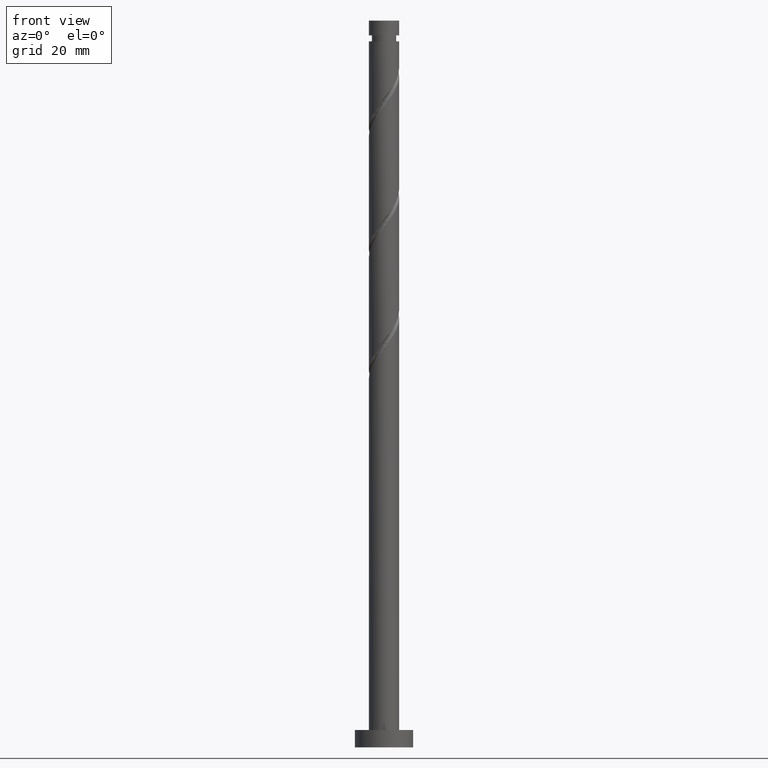
[diagram: clean part render]
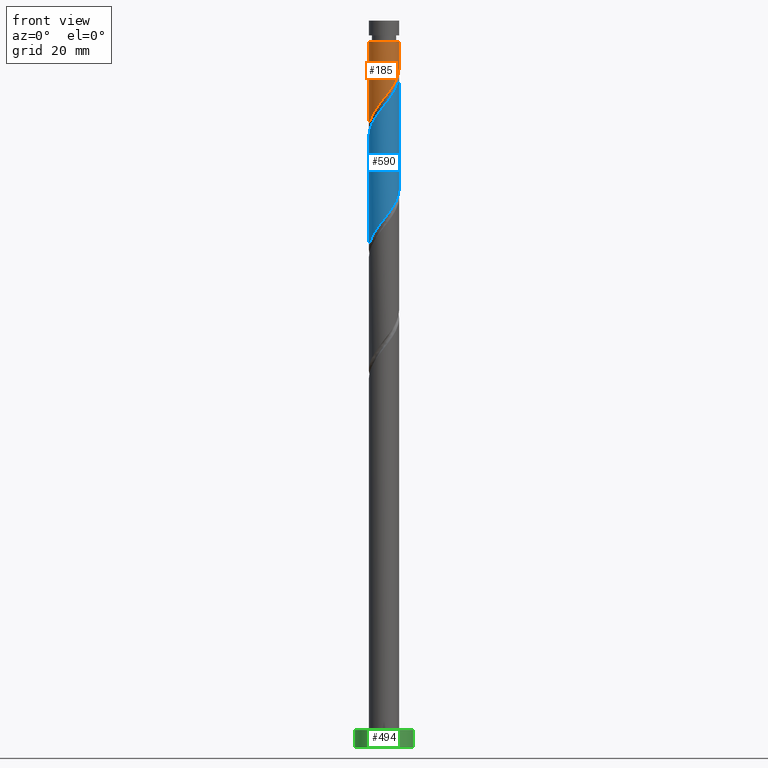
[diagram: same view with three faces highlighted in distinct colors, each labeled with its STEP entity id]
A machine part, front view with three faces highlighted in distinct colors.
Their STEP definitions:

[orange] entity #185 — the highlighted cylindrical surface (edge-blend (fillet) strip) has radius 2.6 mm, axis along (-0, -0, -1).
#3 = CARTESIAN_POINT ( 'NONE',  ( 2.263408629347179790, -1.279445730227240841, 115.1714861246484958 ) ) ;
#10 = CARTESIAN_POINT ( 'NONE',  ( 2.060764333439521589, -1.637934439212119342, 114.6506527913151245 ) ) ;
#40 = VERTEX_POINT ( 'NONE', #196 ) ;
#123 = CARTESIAN_POINT ( 'NONE',  ( -2.600000000000000089, 0.000000000000000000, 125.0000000000000000 ) ) ;
#131 = AXIS2_PLACEMENT_3D ( 'NONE', #1476, #1216, #1491 ) ;
#132 = VERTEX_POINT ( 'NONE', #203 ) ;
#136 = CARTESIAN_POINT ( 'NONE',  ( -2.599999999999999201, -1.544289586670198367E-15, 106.4612885661187391 ) ) ;
#185 = ADVANCED_FACE ( 'NONE', ( #961 ), #1313, .T. ) ;
#196 = CARTESIAN_POINT ( 'NONE',  ( -2.599999999999999645, -1.544289586670198367E-15, 106.4612885661187391 ) ) ;
#203 = CARTESIAN_POINT ( 'NONE',  ( -2.599999999999997424, 0.000000000000000000, 121.4214861246484674 ) ) ;
#215 = DIRECTION ( 'NONE',  ( -0.000000000000000000, -0.000000000000000000, -1.000000000000000000 ) ) ;
#251 = CARTESIAN_POINT ( 'NONE',  ( 2.600000000000000089, -0.2613098319673931025, 116.5436506573775830 ) ) ;
#269 = CARTESIAN_POINT ( 'NONE',  ( -1.637934439212119120, -2.060764333439521589, 109.4423194579817675 ) ) ;
#278 = CIRCLE ( 'NONE', #131, 2.599999999999997424 ) ;
#369 = CARTESIAN_POINT ( 'NONE',  ( -0.1138299133485246722, -2.629947074745159430, 111.5256527913151245 ) ) ;
#376 = CARTESIAN_POINT ( 'NONE',  ( -1.279445730227240396, -2.263408629347179790, 109.9631527913151814 ) ) ;
#399 = EDGE_CURVE ( 'NONE', #132, #40, #1480, .T. ) ;
#418 = EDGE_CURVE ( 'NONE', #623, #40, #466, .T. ) ;
#466 =( BOUNDED_CURVE ( )  B_SPLINE_CURVE ( 2, ( #504, #251, #968, #1099, #3, #10, #1220, #1459, #1349, #743, #492, #369, #615, #1467, #376, #269, #846, #750, #983, #1355, #736, #992, #136 ),
 .UNSPECIFIED., .F., .T. ) 
 B_SPLINE_CURVE_WITH_KNOTS ( ( 3, 2, 2, 2, 2, 2, 2, 2, 2, 2, 2, 3 ),
 ( 0.3045322023138550827, 0.3125000000000000000, 0.3250000000000000111, 0.3375000000000000222, 0.3499999999999999778, 0.3624999999999999889, 0.3750000000000000000, 0.3875000000000000111, 0.4000000000000000222, 0.4124999999999999778, 0.4249999999999999889, 0.4295322023138549716 ),
 .UNSPECIFIED. ) 
 CURVE ( )  GEOMETRIC_REPRESENTATION_ITEM ( )  RATIONAL_B_SPLINE_CURVE ( ( 0.9039174447099348475, 0.9019565955404640345, 0.9090909090909123913, 0.8978984914501285663, 0.9090909090909123913, 0.8978984914501285663, 0.9090909090909123913, 0.8978984914501285663, 0.9090909090909123913, 0.8978984914501285663, 0.9090909090909123913, 0.8978984914501285663, 0.9090909090909123913, 0.8978984914501285663, 0.9090909090909123913, 0.8978984914501285663, 0.9090909090909123913, 0.8978984914501285663, 0.9090909090909123913, 0.8978984914501285663, 0.9090909090909123913, 0.9050328050005771452, 0.9039174447099349585 ) ) 
 REPRESENTATION_ITEM ( '' )  );
#487 = VERTEX_POINT ( 'NONE', #868 ) ;
#492 = CARTESIAN_POINT ( 'NONE',  ( 0.2953048731074912059, -2.583175377692920716, 112.0464861246484674 ) ) ;
#504 = CARTESIAN_POINT ( 'NONE',  ( 2.599999999999999645, 1.289406839355699590E-15, 116.8779552327854105 ) ) ;
#507 = ORIENTED_EDGE ( 'NONE', *, *, #399, .T. ) ;
#613 = AXIS2_PLACEMENT_3D ( 'NONE', #1177, #1419, #1452 ) ;
#615 = CARTESIAN_POINT ( 'NONE',  ( -0.5173934672954429992, -2.547999999999999154, 111.0048194579818102 ) ) ;
#623 = VERTEX_POINT ( 'NONE', #1151 ) ;
#736 = CARTESIAN_POINT ( 'NONE',  ( -2.583175377692920716, -0.2953048731074913169, 106.8381527913151245 ) ) ;
#743 = CARTESIAN_POINT ( 'NONE',  ( 0.7044396595635074032, -2.536403680640682445, 112.5673194579818102 ) ) ;
#750 = CARTESIAN_POINT ( 'NONE',  ( -2.194579422111507139, -1.453753770477751450, 108.4006527913151388 ) ) ;
#842 = CARTESIAN_POINT ( 'NONE',  ( 2.600000000000000089, 3.184081677783117698E-16, 125.0000000000000000 ) ) ;
#846 = CARTESIAN_POINT ( 'NONE',  ( -1.916256930661813573, -1.757259051958636409, 108.9214861246484674 ) ) ;
#847 = ORIENTED_EDGE ( 'NONE', *, *, #907, .F. ) ;
#868 = CARTESIAN_POINT ( 'NONE',  ( 2.599999999999997424, 3.184081677783115726E-16, 121.4214861246484674 ) ) ;
#907 = EDGE_CURVE ( 'NONE', #487, #623, #1324, .T. ) ;
#961 = FACE_OUTER_BOUND ( 'NONE', #1093, .T. ) ;
#968 = CARTESIAN_POINT ( 'NONE',  ( 2.547999999999999154, -0.5173934672954431102, 116.2131527913151530 ) ) ;
#983 = CARTESIAN_POINT ( 'NONE',  ( -2.365491551376095458, -1.079096715020629205, 107.8798194579818102 ) ) ;
#992 = CARTESIAN_POINT ( 'NONE',  ( -2.599999999999998312, -0.1481317173607312743, 106.6507996553260114 ) ) ;
#1092 = DIRECTION ( 'NONE',  ( -0.000000000000000000, -0.000000000000000000, -1.000000000000000000 ) ) ;
#1093 = EDGE_LOOP ( 'NONE', ( #847, #1315, #507, #1288 ) ) ;
#1099 = CARTESIAN_POINT ( 'NONE',  ( 2.466052925254839323, -0.9209570212423613400, 115.6923194579817959 ) ) ;
#1118 = VECTOR ( 'NONE', #215, 1000.000000000000000 ) ;
#1151 = CARTESIAN_POINT ( 'NONE',  ( 2.599999999999999645, 1.289406839355699590E-15, 116.8779552327854105 ) ) ;
#1174 = EDGE_CURVE ( 'NONE', #487, #132, #278, .T. ) ;
#1177 = CARTESIAN_POINT ( 'NONE',  ( 0.000000000000000000, 0.000000000000000000, 125.0000000000000000 ) ) ;
#1216 = DIRECTION ( 'NONE',  ( -0.000000000000000000, -0.000000000000000000, -1.000000000000000000 ) ) ;
#1220 = CARTESIAN_POINT ( 'NONE',  ( 1.757259051958636409, -1.916256930661813573, 114.1298194579817959 ) ) ;
#1225 = VECTOR ( 'NONE', #1092, 1000.000000000000000 ) ;
#1288 = ORIENTED_EDGE ( 'NONE', *, *, #418, .F. ) ;
#1313 = CYLINDRICAL_SURFACE ( 'NONE', #613, 2.600000000000000089 ) ;
#1315 = ORIENTED_EDGE ( 'NONE', *, *, #1174, .T. ) ;
#1324 = LINE ( 'NONE', #842, #1118 ) ;
#1349 = CARTESIAN_POINT ( 'NONE',  ( 1.079096715020629205, -2.365491551376095458, 113.0881527913151530 ) ) ;
#1355 = CARTESIAN_POINT ( 'NONE',  ( -2.536403680640682445, -0.7044396595635075142, 107.3589861246484816 ) ) ;
#1419 = DIRECTION ( 'NONE',  ( -0.000000000000000000, -0.000000000000000000, -1.000000000000000000 ) ) ;
#1452 = DIRECTION ( 'NONE',  ( -1.000000000000000000, 0.000000000000000000, 0.000000000000000000 ) ) ;
#1459 = CARTESIAN_POINT ( 'NONE',  ( 1.453753770477751450, -2.194579422111507583, 113.6089861246484674 ) ) ;
#1467 = CARTESIAN_POINT ( 'NONE',  ( -0.9209570212423611180, -2.466052925254839323, 110.4839861246484531 ) ) ;
#1476 = CARTESIAN_POINT ( 'NONE',  ( 0.000000000000000000, 0.000000000000000000, 121.4214861246484674 ) ) ;
#1480 = LINE ( 'NONE', #123, #1225 ) ;
#1491 = DIRECTION ( 'NONE',  ( -1.000000000000000000, 0.000000000000000000, 0.000000000000000000 ) ) ;

[blue] entity #590 — the highlighted cylindrical surface (edge-blend (fillet) strip) has radius 2.6 mm, axis along (-0, -0, -1).
#23 = CARTESIAN_POINT ( 'NONE',  ( 2.600000000000004086, 8.845930642091356675E-16, 115.5483503498448670 ) ) ;
#45 = CARTESIAN_POINT ( 'NONE',  ( 2.547999999999999154, -0.5173934672954431102, 95.37981945798179595 ) ) ;
#55 = CARTESIAN_POINT ( 'NONE',  ( -0.5173934672954429992, -2.547999999999999154, 90.17148612464848156 ) ) ;
#116 = CARTESIAN_POINT ( 'NONE',  ( -1.757259051958639740, -1.916256930661815572, 107.8798194579817817 ) ) ;
#139 = VERTEX_POINT ( 'NONE', #245 ) ;
#143 = CARTESIAN_POINT ( 'NONE',  ( 2.600000000000003197, -0.1481317173607285542, 115.3588392606375805 ) ) ;
#160 = VERTEX_POINT ( 'NONE', #1541 ) ;
#182 = CARTESIAN_POINT ( 'NONE',  ( -2.600000000000000089, 3.418427434570925027E-15, 85.62795523278539633 ) ) ;
#194 = CARTESIAN_POINT ( 'NONE',  ( -0.1138299133485246722, -2.629947074745159430, 90.69231945798178174 ) ) ;
#245 = CARTESIAN_POINT ( 'NONE',  ( 2.599999999999999201, 3.598344667969393893E-15, 96.04462189945208195 ) ) ;
#257 = DIRECTION ( 'NONE',  ( -0.000000000000000000, -0.000000000000000000, -1.000000000000000000 ) ) ;
#263 = CARTESIAN_POINT ( 'NONE',  ( 2.583175377692925156, -0.2953048731074931488, 115.1714861246484389 ) ) ;
#291 = DIRECTION ( 'NONE',  ( -0.000000000000000000, -0.000000000000000000, -1.000000000000000000 ) ) ;
#292 = CARTESIAN_POINT ( 'NONE',  ( 0.7044396595635074032, -2.536403680640682445, 91.73398612464848156 ) ) ;
#332 = EDGE_CURVE ( 'NONE', #666, #1307, #1097, .T. ) ;
#381 = EDGE_CURVE ( 'NONE', #1307, #139, #756, .T. ) ;
#406 = CARTESIAN_POINT ( 'NONE',  ( 2.600000000000000089, -0.2613098319673937131, 95.71031732404422598 ) ) ;
#423 = CARTESIAN_POINT ( 'NONE',  ( -2.365491551376095458, -1.079096715020629205, 87.04648612464846735 ) ) ;
#426 = CARTESIAN_POINT ( 'NONE',  ( 2.600000000000004086, 8.845930642091356675E-16, 115.5483503498448670 ) ) ;
#456 = CARTESIAN_POINT ( 'NONE',  ( -0.7044396595635092906, -2.536403680640686886, 109.4423194579817675 ) ) ;
#464 = CARTESIAN_POINT ( 'NONE',  ( -2.548000000000004039, -0.5173934672954429992, 105.7964861246484958 ) ) ;
#496 = LINE ( 'NONE', #1470, #1269 ) ;
#519 = EDGE_LOOP ( 'NONE', ( #631, #1461, #602, #1367 ) ) ;
#524 = CARTESIAN_POINT ( 'NONE',  ( 2.466052925254839323, -0.9209570212423613400, 94.85898612464843893 ) ) ;
#536 = CARTESIAN_POINT ( 'NONE',  ( -1.637934439212119120, -2.060764333439521589, 88.60898612464846735 ) ) ;
#538 = AXIS2_PLACEMENT_3D ( 'NONE', #908, #291, #1039 ) ;
#569 = CARTESIAN_POINT ( 'NONE',  ( -2.466052925254843320, -0.9209570212423621172, 106.3173194579817959 ) ) ;
#586 = CARTESIAN_POINT ( 'NONE',  ( 0.1138299133485235898, -2.629947074745163871, 110.4839861246484674 ) ) ;
#590 = ADVANCED_FACE ( 'NONE', ( #772 ), #1511, .T. ) ;
#602 = ORIENTED_EDGE ( 'NONE', *, *, #1192, .T. ) ;
#631 = ORIENTED_EDGE ( 'NONE', *, *, #381, .F. ) ;
#661 = CARTESIAN_POINT ( 'NONE',  ( 1.079096715020629205, -2.365491551376095458, 92.25481945798182437 ) ) ;
#663 = VECTOR ( 'NONE', #257, 1000.000000000000000 ) ;
#666 = VERTEX_POINT ( 'NONE', #1032 ) ;
#672 = CARTESIAN_POINT ( 'NONE',  ( -1.279445730227240396, -2.263408629347179790, 89.12981945798182437 ) ) ;
#707 = CARTESIAN_POINT ( 'NONE',  ( -2.060764333439525142, -1.637934439212121562, 107.3589861246484247 ) ) ;
#715 = CARTESIAN_POINT ( 'NONE',  ( 2.194579422111509803, -1.453753770477754337, 113.6089861246484389 ) ) ;
#747 = DIRECTION ( 'NONE',  ( -0.000000000000000000, -0.000000000000000000, -1.000000000000000000 ) ) ;
#756 = LINE ( 'NONE', #1333, #663 ) ;
#772 = FACE_OUTER_BOUND ( 'NONE', #519, .T. ) ;
#779 = CARTESIAN_POINT ( 'NONE',  ( -0.9209570212423611180, -2.466052925254839323, 89.65065279131512455 ) ) ;
#831 = CARTESIAN_POINT ( 'NONE',  ( 1.637934439212121118, -2.060764333439525142, 112.5673194579818102 ) ) ;
#882 = CARTESIAN_POINT ( 'NONE',  ( 2.263408629347179790, -1.279445730227240841, 94.33815279131512455 ) ) ;
#891 = CARTESIAN_POINT ( 'NONE',  ( 1.453753770477751450, -2.194579422111507583, 92.77565279131511033 ) ) ;
#908 = CARTESIAN_POINT ( 'NONE',  ( 0.000000000000000000, 0.000000000000000000, 125.0000000000000000 ) ) ;
#936 = CARTESIAN_POINT ( 'NONE',  ( -0.2953048731074928712, -2.583175377692925156, 109.9631527913151388 ) ) ;
#944 = CARTESIAN_POINT ( 'NONE',  ( -2.263408629347184675, -1.279445730227242173, 106.8381527913151388 ) ) ;
#1005 = CARTESIAN_POINT ( 'NONE',  ( 2.599999999999999201, 3.598344667969393893E-15, 96.04462189945208195 ) ) ;
#1014 = CARTESIAN_POINT ( 'NONE',  ( 1.757259051958636409, -1.916256930661813573, 93.29648612464849577 ) ) ;
#1023 = CARTESIAN_POINT ( 'NONE',  ( -1.916256930661813573, -1.757259051958636409, 88.08815279131513876 ) ) ;
#1032 = CARTESIAN_POINT ( 'NONE',  ( -2.600000000000004086, -1.259420633789277726E-15, 105.1316836831782098 ) ) ;
#1039 = DIRECTION ( 'NONE',  ( -1.000000000000000000, 0.000000000000000000, 0.000000000000000000 ) ) ;
#1060 = CARTESIAN_POINT ( 'NONE',  ( -1.453753770477754337, -2.194579422111509803, 108.4006527913151245 ) ) ;
#1068 = CARTESIAN_POINT ( 'NONE',  ( -2.600000000000004086, -1.259420633789277726E-15, 105.1316836831782098 ) ) ;
#1078 = CARTESIAN_POINT ( 'NONE',  ( 0.5173934672954427771, -2.548000000000004039, 111.0048194579817675 ) ) ;
#1097 =( BOUNDED_CURVE ( )  B_SPLINE_CURVE ( 2, ( #1068, #1205, #464, #569, #944, #707, #116, #1060, #1548, #456, #936, #586, #1078, #1566, #1428, #831, #1320, #715, #1198, #1213, #263, #143, #23 ),
 .UNSPECIFIED., .F., .T. ) 
 B_SPLINE_CURVE_WITH_KNOTS ( ( 3, 2, 2, 2, 2, 2, 2, 2, 2, 2, 2, 3 ),
 ( 0.5545322023138553602, 0.5625000000000000000, 0.5749999999999999556, 0.5875000000000000222, 0.5999999999999999778, 0.6125000000000000444, 0.6250000000000000000, 0.6374999999999999556, 0.6500000000000000222, 0.6624999999999999778, 0.6750000000000000444, 0.6795322023138551382 ),
 .UNSPECIFIED. ) 
 CURVE ( )  GEOMETRIC_REPRESENTATION_ITEM ( )  RATIONAL_B_SPLINE_CURVE ( ( 0.9039174447099420640, 0.9019565955404715840, 0.9090909090909198298, 0.8978984914501358938, 0.9090909090909198298, 0.8978984914501358938, 0.9090909090909198298, 0.8978984914501358938, 0.9090909090909198298, 0.8978984914501358938, 0.9090909090909198298, 0.8978984914501358938, 0.9090909090909198298, 0.8978984914501358938, 0.9090909090909198298, 0.8978984914501358938, 0.9090909090909198298, 0.8978984914501358938, 0.9090909090909198298, 0.8978984914501358938, 0.9090909090909198298, 0.9050328050005842506, 0.9039174447099420640 ) ) 
 REPRESENTATION_ITEM ( '' )  );
#1143 = CARTESIAN_POINT ( 'NONE',  ( 2.060764333439521589, -1.637934439212119342, 93.81731945798179595 ) ) ;
#1152 = CARTESIAN_POINT ( 'NONE',  ( -2.583175377692920716, -0.2953048731074913169, 86.00481945798179595 ) ) ;
#1161 = CARTESIAN_POINT ( 'NONE',  ( -2.600000000000000089, -0.1481317173607233639, 85.81746632199266855 ) ) ;
#1192 = EDGE_CURVE ( 'NONE', #666, #160, #496, .T. ) ;
#1198 = CARTESIAN_POINT ( 'NONE',  ( 2.365491551376099011, -1.079096715020632091, 114.1298194579818102 ) ) ;
#1205 = CARTESIAN_POINT ( 'NONE',  ( -2.600000000000003197, -0.2613098319674003189, 105.4659882585860373 ) ) ;
#1213 = CARTESIAN_POINT ( 'NONE',  ( 2.536403680640686886, -0.7044396595635095126, 114.6506527913151388 ) ) ;
#1269 = VECTOR ( 'NONE', #747, 1000.000000000000000 ) ;
#1270 = CARTESIAN_POINT ( 'NONE',  ( -2.536403680640682445, -0.7044396595635075142, 86.52565279131513876 ) ) ;
#1307 = VERTEX_POINT ( 'NONE', #426 ) ;
#1320 = CARTESIAN_POINT ( 'NONE',  ( 1.916256930661815572, -1.757259051958639740, 113.0881527913151530 ) ) ;
#1333 = CARTESIAN_POINT ( 'NONE',  ( 2.600000000000000089, 3.184081677783117698E-16, 125.0000000000000000 ) ) ;
#1362 =( BOUNDED_CURVE ( )  B_SPLINE_CURVE ( 2, ( #1005, #406, #45, #524, #882, #1143, #1014, #891, #661, #292, #1409, #194, #55, #779, #672, #536, #1023, #1512, #423, #1270, #1152, #1161, #182 ),
 .UNSPECIFIED., .F., .T. ) 
 B_SPLINE_CURVE_WITH_KNOTS ( ( 3, 2, 2, 2, 2, 2, 2, 2, 2, 2, 2, 3 ),
 ( 0.5545322023138551382, 0.5625000000000000000, 0.5749999999999999556, 0.5875000000000000222, 0.5999999999999999778, 0.6125000000000000444, 0.6250000000000000000, 0.6374999999999999556, 0.6500000000000000222, 0.6624999999999999778, 0.6750000000000000444, 0.6795322023138552492 ),
 .UNSPECIFIED. ) 
 CURVE ( )  GEOMETRIC_REPRESENTATION_ITEM ( )  RATIONAL_B_SPLINE_CURVE ( ( 0.9039174447099347365, 0.9019565955404639235, 0.9090909090909123913, 0.8978984914501285663, 0.9090909090909123913, 0.8978984914501285663, 0.9090909090909123913, 0.8978984914501285663, 0.9090909090909123913, 0.8978984914501285663, 0.9090909090909123913, 0.8978984914501285663, 0.9090909090909123913, 0.8978984914501285663, 0.9090909090909123913, 0.8978984914501285663, 0.9090909090909123913, 0.8978984914501285663, 0.9090909090909123913, 0.8978984914501285663, 0.9090909090909123913, 0.9050328050005768121, 0.9039174447099346255 ) ) 
 REPRESENTATION_ITEM ( '' )  );
#1367 = ORIENTED_EDGE ( 'NONE', *, *, #1525, .F. ) ;
#1409 = CARTESIAN_POINT ( 'NONE',  ( 0.2953048731074912059, -2.583175377692920716, 91.21315279131515297 ) ) ;
#1428 = CARTESIAN_POINT ( 'NONE',  ( 1.279445730227241729, -2.263408629347184675, 112.0464861246484531 ) ) ;
#1461 = ORIENTED_EDGE ( 'NONE', *, *, #332, .F. ) ;
#1470 = CARTESIAN_POINT ( 'NONE',  ( -2.600000000000000089, 0.000000000000000000, 125.0000000000000000 ) ) ;
#1511 = CYLINDRICAL_SURFACE ( 'NONE', #538, 2.600000000000000089 ) ;
#1512 = CARTESIAN_POINT ( 'NONE',  ( -2.194579422111507139, -1.453753770477751450, 87.56731945798179595 ) ) ;
#1525 = EDGE_CURVE ( 'NONE', #139, #160, #1362, .T. ) ;
#1541 = CARTESIAN_POINT ( 'NONE',  ( -2.599999999999999645, 3.418427434570925027E-15, 85.62795523278539633 ) ) ;
#1548 = CARTESIAN_POINT ( 'NONE',  ( -1.079096715020632091, -2.365491551376099011, 108.9214861246484674 ) ) ;
#1566 = CARTESIAN_POINT ( 'NONE',  ( 0.9209570212423618951, -2.466052925254843320, 111.5256527913151245 ) ) ;

[green] entity #494 — the highlighted cylindrical surface (edge-blend (fillet) strip) has radius 5 mm, axis along (-0, -0, -1).
#4 = VERTEX_POINT ( 'NONE', #893 ) ;
#31 = CYLINDRICAL_SURFACE ( 'NONE', #1507, 5.000000000000000000 ) ;
#63 = CARTESIAN_POINT ( 'NONE',  ( 0.000000000000000000, 0.000000000000000000, 3.000000000000000000 ) ) ;
#69 = EDGE_CURVE ( 'NONE', #902, #1101, #1154, .T. ) ;
#118 = VERTEX_POINT ( 'NONE', #440 ) ;
#158 = DIRECTION ( 'NONE',  ( -0.000000000000000000, -0.000000000000000000, -1.000000000000000000 ) ) ;
#181 = DIRECTION ( 'NONE',  ( 0.000000000000000000, 0.000000000000000000, 1.000000000000000000 ) ) ;
#330 = ORIENTED_EDGE ( 'NONE', *, *, #652, .T. ) ;
#440 = CARTESIAN_POINT ( 'NONE',  ( -5.000000000000000000, 0.000000000000000000, 3.000000000000000000 ) ) ;
#494 = ADVANCED_FACE ( 'NONE', ( #1119 ), #31, .T. ) ;
#544 = DIRECTION ( 'NONE',  ( -0.000000000000000000, -0.000000000000000000, -1.000000000000000000 ) ) ;
#570 = ORIENTED_EDGE ( 'NONE', *, *, #641, .F. ) ;
#641 = EDGE_CURVE ( 'NONE', #118, #902, #1565, .T. ) ;
#652 = EDGE_CURVE ( 'NONE', #118, #4, #1400, .T. ) ;
#660 = DIRECTION ( 'NONE',  ( -1.000000000000000000, 0.000000000000000000, 0.000000000000000000 ) ) ;
#671 = CARTESIAN_POINT ( 'NONE',  ( 0.000000000000000000, 0.000000000000000000, 3.000000000000000000 ) ) ;
#717 = VECTOR ( 'NONE', #1025, 1000.000000000000000 ) ;
#732 = CARTESIAN_POINT ( 'NONE',  ( 5.000000000000000000, 6.123233995736766282E-16, 0.000000000000000000 ) ) ;
#752 = ORIENTED_EDGE ( 'NONE', *, *, #69, .F. ) ;
#757 = AXIS2_PLACEMENT_3D ( 'NONE', #1301, #1317, #1082 ) ;
#828 = CARTESIAN_POINT ( 'NONE',  ( 5.000000000000000000, 6.123233995736766282E-16, 3.000000000000000000 ) ) ;
#866 = AXIS2_PLACEMENT_3D ( 'NONE', #63, #181, #898 ) ;
#893 = CARTESIAN_POINT ( 'NONE',  ( -5.000000000000000000, 0.000000000000000000, 0.000000000000000000 ) ) ;
#898 = DIRECTION ( 'NONE',  ( 1.000000000000000000, 0.000000000000000000, 0.000000000000000000 ) ) ;
#902 = VERTEX_POINT ( 'NONE', #828 ) ;
#1007 = EDGE_CURVE ( 'NONE', #4, #1101, #1169, .T. ) ;
#1025 = DIRECTION ( 'NONE',  ( -0.000000000000000000, -0.000000000000000000, -1.000000000000000000 ) ) ;
#1079 = VECTOR ( 'NONE', #544, 1000.000000000000000 ) ;
#1082 = DIRECTION ( 'NONE',  ( 1.000000000000000000, 0.000000000000000000, 0.000000000000000000 ) ) ;
#1101 = VERTEX_POINT ( 'NONE', #732 ) ;
#1119 = FACE_OUTER_BOUND ( 'NONE', #1573, .T. ) ;
#1154 = LINE ( 'NONE', #1530, #717 ) ;
#1169 = CIRCLE ( 'NONE', #757, 5.000000000000000000 ) ;
#1301 = CARTESIAN_POINT ( 'NONE',  ( 0.000000000000000000, 0.000000000000000000, 0.000000000000000000 ) ) ;
#1317 = DIRECTION ( 'NONE',  ( 0.000000000000000000, 0.000000000000000000, 1.000000000000000000 ) ) ;
#1400 = LINE ( 'NONE', #1494, #1079 ) ;
#1494 = CARTESIAN_POINT ( 'NONE',  ( -5.000000000000000000, 0.000000000000000000, 3.000000000000000000 ) ) ;
#1507 = AXIS2_PLACEMENT_3D ( 'NONE', #671, #158, #660 ) ;
#1530 = CARTESIAN_POINT ( 'NONE',  ( 5.000000000000000000, 6.123233995736766282E-16, 3.000000000000000000 ) ) ;
#1559 = ORIENTED_EDGE ( 'NONE', *, *, #1007, .T. ) ;
#1565 = CIRCLE ( 'NONE', #866, 5.000000000000000000 ) ;
#1573 = EDGE_LOOP ( 'NONE', ( #752, #570, #330, #1559 ) ) ;